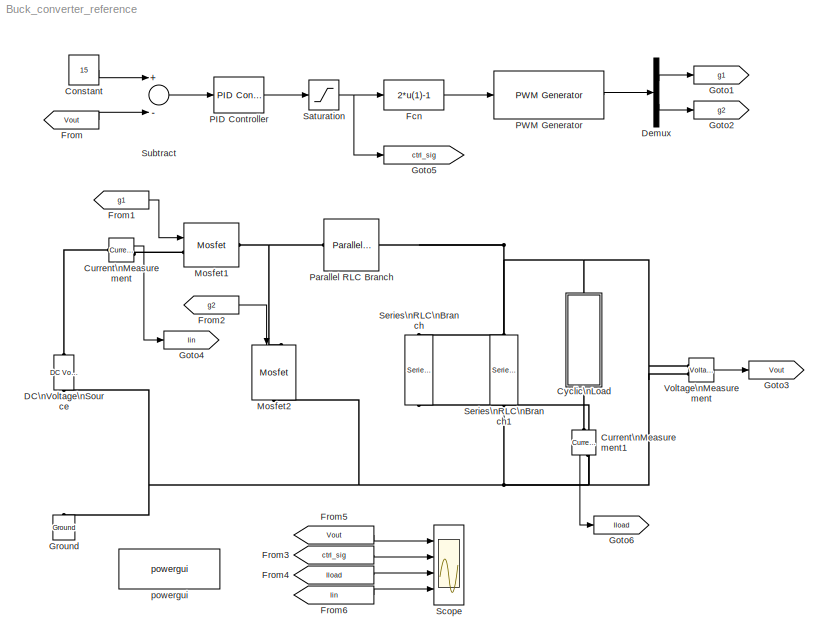
MODEL Buck_converter_reference
KIND model
BLOCK [Constant] Constant
  SID = 19
  Value = 15
BLOCK [Reference] Current\nMeasurement  REF=powerlib/Measurements/Current Measurement
  OutputType = Complex
  PSBequivalent = 0
  PhasorSimulation = off
  Ports = [0, 1, 0, 0, 0, 1, 1]
  SID = 2
  SourceBlock = powerlib/Measurements/Current Measurement
  SourceType = Current Measurement
BLOCK [Reference] Current\nMeasurement1  REF=powerlib/Measurements/Current Measurement
  OutputType = Complex
  PSBequivalent = 0
  PhasorSimulation = off
  Ports = [0, 1, 0, 0, 0, 1, 1]
  SID = 34
  SourceBlock = powerlib/Measurements/Current Measurement
  SourceType = Current Measurement
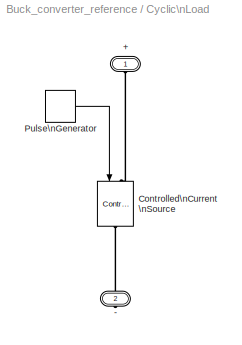
BLOCK [SubSystem] Cyclic\nLoad
  Ports = [0, 0, 0, 0, 0, 1, 1]
  RequestExecContextInheritance = off
  SID = 14
BLOCK [PMIOPort] Cyclic\nLoad/+
  Port = 1
  SID = 15
  Side = Left
BLOCK [PMIOPort] Cyclic\nLoad/-
  Port = 2
  SID = 16
  Side = Right
BLOCK [Reference] Cyclic\nLoad/Controlled\nCurrent\nSource  REF=powerlib/Electrical\nSources/Controlled Current Source
  Amplitude = 0
  Frequency = 0
  Initialize = on
  Measurements = None
  Phase = 0
  Ports = [1, 0, 0, 0, 0, 1, 1]
  SID = 10
  SourceBlock = powerlib/Electrical\nSources/Controlled Current Source
  SourceType = Controlled Current Source
  Source_Type = AC
BLOCK [DiscretePulseGenerator] Cyclic\nLoad/Pulse\nGenerator
  Amplitude = 2
  Period = 1/200
  PhaseDelay = 1/400
  Ports = [0, 1]
  PulseType = Time based
  PulseWidth = 50
  SID = 11
BLOCK [Reference] DC\nVoltage\nSource  REF=powerlib/Electrical\nSources/DC Voltage Source
  Amplitude = 30
  Measurements = None
  Ports = [0, 0, 0, 0, 0, 1, 1]
  SID = 1
  SourceBlock = powerlib/Electrical\nSources/DC Voltage Source
  SourceType = DC Voltage Source
BLOCK [Demux] Demux
  DisplayOption = bar
  Outputs = 2
  Ports = [1, 2]
  SID = 26
BLOCK [Fcn] Fcn
  Expr = 2*u(1)-1
  SID = 23
BLOCK [From] From
  GotoTag = Vout
  SID = 20
BLOCK [From] From1
  GotoTag = g1
  SID = 36
BLOCK [From] From2
  GotoTag = g2
  SID = 37
BLOCK [From] From3
  GotoTag = ctrl_sig
  SID = 46
BLOCK [From] From4
  GotoTag = Iload
  SID = 47
BLOCK [From] From5
  GotoTag = Vout
  SID = 48
BLOCK [From] From6
  GotoTag = Iin
  SID = 51
BLOCK [Goto] Goto1
  GotoTag = g1
  SID = 27
BLOCK [Goto] Goto2
  GotoTag = g2
  SID = 28
BLOCK [Goto] Goto3
  GotoTag = Vout
  SID = 35
BLOCK [Goto] Goto4
  GotoTag = Iin
  SID = 38
BLOCK [Goto] Goto5
  GotoTag = ctrl_sig
  SID = 43
BLOCK [Goto] Goto6
  GotoTag = Iload
  SID = 45
BLOCK [Reference] Ground  REF=powerlib/Elements/Ground
  LConnTagsString = a
  Ports = [0, 0, 0, 0, 0, 1]
  SID = 12
  SourceBlock = powerlib/Elements/Ground
  SourceType = Ground
BLOCK [Reference] Mosfet1  REF=powerlib/Power\nElectronics/Mosfet
  Cs = inf
  IC = 0
  Lon = 0
  Measurements = off
  Ports = [1, 0, 0, 0, 0, 1, 1]
  Rd = 0.01
  Ron = 0.1
  Rs = 1e5
  SID = 3
  SourceBlock = powerlib/Power\nElectronics/Mosfet
  SourceType = Mosfet
  Vfd = 0.8
BLOCK [Reference] Mosfet2  REF=powerlib/Power\nElectronics/Mosfet
  Cs = inf
  IC = 0
  Lon = 0
  Measurements = off
  Ports = [1, 0, 0, 0, 0, 1, 1]
  Rd = 0.01
  Ron = 0.1
  Rs = 1e5
  SID = 4
  SourceBlock = powerlib/Power\nElectronics/Mosfet
  SourceType = Mosfet
  Vfd = 0.8
BLOCK [Reference] PID Controller  REF=simulink/Continuous/PID Controller
  AntiWindupMode = none
  Controller = PI
  D = 0
  DOutDataTypeStr = Inherit: Inherit via internal rule
  DOutMax = []
  DOutMin = []
  DParamDataTypeStr = Inherit: Inherit via internal rule
  DParamMax = []
  DParamMin = []
  DifferentiatorICPrevScaledInput = 0
  DifferentiatorOutDataTypeStr = Inherit: Inherit via internal rule
  DifferentiatorOutMax = []
  DifferentiatorOutMin = []
  ExternalReset = none
  FilterContinuousStateAttributes = ''
  FilterMethod = Forward Euler
  FilterOutDataTypeStr = Inherit: Inherit via internal rule
  FilterOutMax = []
  FilterOutMin = []
  FilterRTWStateStorageClass = Auto
  FilterStateMustResolveToSignalObject = off
  Form = Parallel
  I = 200*5e-6
  IOutDataTypeStr = Inherit: Inherit via internal rule
  IOutMax = []
  IOutMin = []
  IParamDataTypeStr = Inherit: Inherit via internal rule
  IParamMax = []
  IParamMin = []
  IgnoreLimit = off
  InitialConditionForFilter = 0
  InitialConditionForIntegrator = 0
  InitialConditionSource = internal
  IntegratorContinuousStateAttributes = ''
  IntegratorMethod = Forward Euler
  IntegratorOutDataTypeStr = Inherit: Inherit via internal rule
  IntegratorOutMax = []
  IntegratorOutMin = []
  IntegratorRTWStateStorageClass = Auto
  IntegratorStateMustResolveToSignalObject = off
  Kb = 1
  KbOutDataTypeStr = Inherit: Inherit via internal rule
  KbOutMax = []
  KbOutMin = []
  KbParamDataTypeStr = Inherit: Inherit via internal rule
  KbParamMax = []
  KbParamMin = []
  Kt = 1
  KtOutDataTypeStr = Inherit: Inherit via internal rule
  KtOutMax = []
  KtOutMin = []
  KtParamDataTypeStr = Inherit: Inherit via internal rule
  KtParamMax = []
  KtParamMin = []
  LimitOutput = off
  LinearizeAsGain = off
  LockScale = off
  LowerSaturationLimit = -inf
  N = 100
  NOutDataTypeStr = Inherit: Inherit via internal rule
  NOutMax = []
  NOutMin = []
  NParamDataTypeStr = Inherit: Inherit via internal rule
  NParamMax = []
  NParamMin = []
  P = 0.5
  POutDataTypeStr = Inherit: Inherit via internal rule
  POutMax = []
  POutMin = []
  PParamDataTypeStr = Inherit: Inherit via internal rule
  PParamMax = []
  PParamMin = []
  Ports = [1, 1]
  RndMeth = Floor
  SID = 25
  SampleTime = -1
  SaturateOnIntegerOverflow = off
  SaturationOutDataTypeStr = Inherit: Same as input
  SaturationOutMax = []
  SaturationOutMin = []
  SourceBlock = simulink/Continuous/PID Controller
  SourceType = PID 1dof
  SumAccumDataTypeStr = Inherit: Inherit via internal rule
  SumDAccumDataTypeStr = Inherit: Inherit via internal rule
  SumDOutDataTypeStr = Inherit: Inherit via internal rule
  SumDOutMax = []
  SumDOutMin = []
  SumI1AccumDataTypeStr = Inherit: Inherit via internal rule
  SumI1OutDataTypeStr = Inherit: Inherit via internal rule
  SumI1OutMax = []
  SumI1OutMin = []
  SumI2AccumDataTypeStr = Inherit: Inherit via internal rule
  SumI2OutDataTypeStr = Inherit: Inherit via internal rule
  SumI2OutMax = []
  SumI2OutMin = []
  SumI3AccumDataTypeStr = Inherit: Inherit via internal rule
  SumI3OutDataTypeStr = Inherit: Inherit via internal rule
  SumI3OutMax = []
  SumI3OutMin = []
  SumOutDataTypeStr = Inherit: Inherit via internal rule
  SumOutMax = []
  SumOutMin = []
  TimeDomain = Continuous-time
  TrackingMode = off
  UpperSaturationLimit = inf
  UseFilter = on
  ZeroCross = on
BLOCK [Reference] PWM Generator  REF=powerlib_extras/Control \nBlocks/PWM Generator
  Fc = 50e3
  Freq = 60
  GeneratorMode = 1-arm  bridge (2 pulses)
  Internal = off
  Phase = 0
  Ports = [1, 1]
  SID = 24
  SourceBlock = powerlib_extras/Control \nBlocks/PWM Generator
  SourceType = PWM Generator
  mIndex = 0.4
BLOCK [Reference] Parallel RLC Branch  REF=powerlib/Elements/Parallel RLC Branch
  AttributesFormatString = \\n
  BranchType = RL
  Capacitance = 1e-6
  Inductance = 1e-3
  InitialCurrent = 0
  InitialVoltage = 0
  LConnTagsString = a
  Measurements = None
  Ports = [0, 0, 0, 0, 0, 1, 1]
  RConnTagsString = __new0
  Resistance = 10e3
  SID = 6
  SetiL0 = off
  Setx0 = off
  SourceBlock = powerlib/Elements/Parallel RLC Branch
  SourceType = Parallel RLC Branch
BLOCK [Saturate] Saturation
  InputPortMap = u0
  LowerLimit = 0.01
  Ports = [1, 1]
  SID = 22
  UpperLimit = 0.95
BLOCK [Scope] Scope
  DataFormat = StructureWithTime
  Floating = off
  LimitDataPoints = off
  NumInputPorts = 4
  Ports = [4]
  SID = 49
  SampleTime = 0
  ShowLegends = off
  TimeRange = 0.01
  YMax = 25~1~3~8
  YMin = 0~0~-1~-1
BLOCK [Reference] Series\nRLC\nBranch  REF=powerlib/Elements/Series RLC Branch
  BranchType = C
  Capacitance = 22e-6
  Inductance = 1e-3
  InitialCurrent = 0
  InitialVoltage = 0
  LConnTagsString = __new0
  Measurements = None
  Ports = [0, 0, 0, 0, 0, 1, 1]
  RConnTagsString = __new0
  Resistance = 1
  SID = 8
  SetiL0 = off
  Setx0 = off
  SourceBlock = powerlib/Elements/Series RLC Branch
  SourceType = Series RLC Branch
BLOCK [Reference] Series\nRLC\nBranch1  REF=powerlib/Elements/Series RLC Branch
  BranchType = R
  Capacitance = 22e-6
  Inductance = 1e-3
  InitialCurrent = 0
  InitialVoltage = 0
  LConnTagsString = __new0
  Measurements = None
  Ports = [0, 0, 0, 0, 0, 1, 1]
  RConnTagsString = __new0
  Resistance = 3.75
  SID = 9
  SetiL0 = off
  Setx0 = off
  SourceBlock = powerlib/Elements/Series RLC Branch
  SourceType = Series RLC Branch
BLOCK [Sum] Subtract
  InputSameDT = off
  Inputs = +-
  OutDataTypeStr = Inherit: Inherit via internal rule
  Ports = [2, 1]
  SID = 21
  SaturateOnIntegerOverflow = off
BLOCK [Reference] Voltage\nMeasurement  REF=powerlib/Measurements/Voltage Measurement
  OutputType = Complex
  PSBequivalent = 0
  PhasorSimulation = off
  Ports = [0, 1, 0, 0, 0, 2]
  SID = 13
  SourceBlock = powerlib/Measurements/Voltage Measurement
  SourceType = Voltage Measurement
BLOCK [Reference] powergui  REF=powerlib/powergui
  DisableRonSwitches = off
  DisableSnubberDevices = off
  DisableVfSwitches = off
  DisplayEquations = off
  DisplayStyle = 1
  EnableUseOfTLC = off
  ErrMax = 1e-4
  Frange = [0:2:500]
  FreqAxis = off
  FunctionMessages = off
  HookPort = off
  Interpol = off
  Iterations = 50
  MaxFrequency = 1000
  Pbase = 100e6
  Ports = []
  Priority = 1
  ResistiveCurrentMeasurement = off
  RestoreLinks = warning
  RmsSteady = 1
  SID = 50
  SPID = off
  SampleTime = 50e-6
  ShowGrid = off
  SolverType = Tustin
  SourceBlock = powerlib/powergui
  SourceType = PSB option menu block
  StartTime = 0.0
  SwTol = 0
  Ts = 100
  UnitsV = kV
  UnitsW = MW
  UserDataPersistent = on
  Xlog = on
  Ylog = off
  ZoomFFT = off
  cycles = 1
  display = off
  echomessages = off
  frequency = 60
  frequencyindice = 0
  frequencyindicesteady = 1
  fundamental = 60
  methode = off
  save = off
  structure = 0
  variable = ZData
  x0status = blocks
LINE Constant:1 -> Subtract:1
LINE Current\nMeasurement1:1 -> Goto6:1
LINE Current\nMeasurement:1 -> Goto4:1
LINE Cyclic\nLoad/Pulse\nGenerator:1 -> Cyclic\nLoad/Controlled\nCurrent\nSource:1
LINE Demux:1 -> Goto1:1
LINE Demux:2 -> Goto2:1
LINE Fcn:1 -> PWM Generator:1
LINE From1:1 -> Mosfet1:1
LINE From2:1 -> Mosfet2:1
LINE From3:1 -> Scope:2
LINE From4:1 -> Scope:3
LINE From5:1 -> Scope:1
LINE From6:1 -> Scope:4
LINE From:1 -> Subtract:2
LINE PID Controller:1 -> Saturation:1
LINE PWM Generator:1 -> Demux:1
NET Saturation:1 -> Fcn:1, Goto5:1
LINE Subtract:1 -> PID Controller:1
LINE Voltage\nMeasurement:1 -> Goto3:1
PLINE Current\nMeasurement1:LConn1 -- Cyclic\nLoad:RConn1
PNET net1: Current\nMeasurement1:RConn1 -- DC\nVoltage\nSource:LConn1 -- Ground:LConn1 -- Mosfet2:RConn1 -- Series\nRLC\nBranch1:RConn1 -- Series\nRLC\nBranch:RConn1 -- Voltage\nMeasurement:LConn2
PLINE Current\nMeasurement:LConn1 -- DC\nVoltage\nSource:RConn1
PLINE Current\nMeasurement:RConn1 -- Mosfet1:LConn1
PLINE Cyclic\nLoad/+:RConn1 -- Cyclic\nLoad/Controlled\nCurrent\nSource:LConn1
PLINE Cyclic\nLoad/-:RConn1 -- Cyclic\nLoad/Controlled\nCurrent\nSource:RConn1
PNET net2: Cyclic\nLoad:LConn1 -- Parallel RLC Branch:RConn1 -- Series\nRLC\nBranch1:LConn1 -- Series\nRLC\nBranch:LConn1 -- Voltage\nMeasurement:LConn1
PNET net3: Mosfet1:RConn1 -- Mosfet2:LConn1 -- Parallel RLC Branch:LConn1
note: NET lines group one-source signal fan-out (src -> all destinations, sorted); 1:1 wires keep LINE; PNET lines group multi-terminal physical nets as a canonical sorted terminal list (undirected conserving connections); 2-terminal nets keep the pairwise PLINE form
